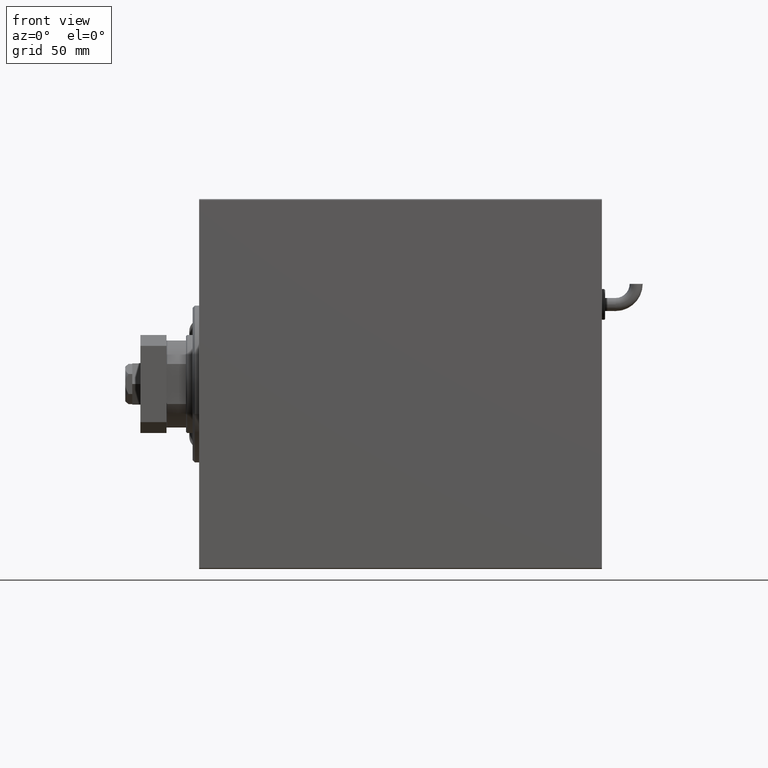
[diagram: clean part render]
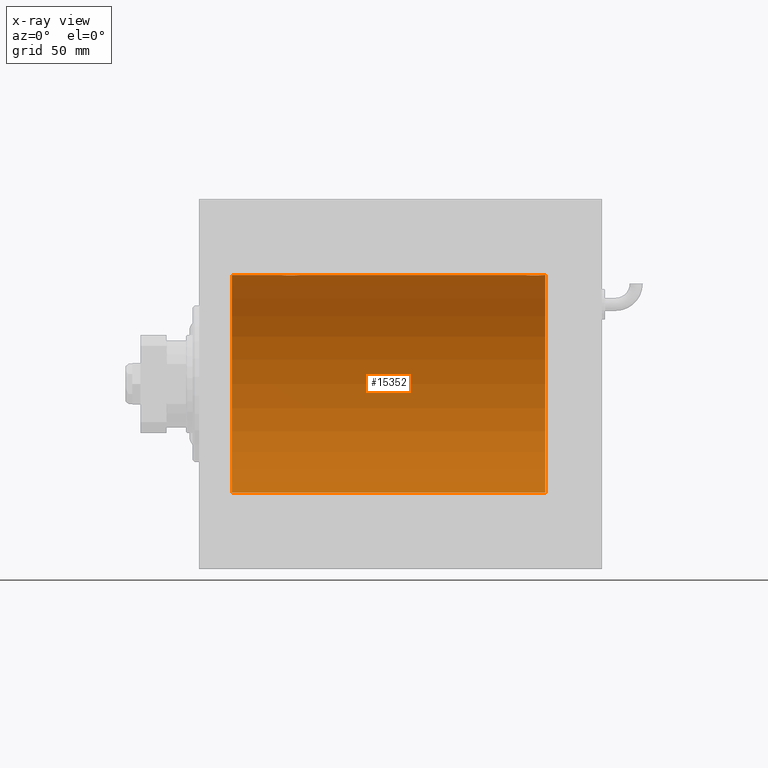
[diagram: x-ray — body ghosted, one internal face saturated and labeled with its STEP entity id]
A machine part, front view, then the same camera in x-ray: the body is ghosted and one INTERNAL B-rep face — a face not visible from any outside direction — is saturated and labeled: STEP entity #15352.
In plain terms, the highlighted cylindrical surface (partial cylindrical patch) has radius 50 mm, axis along (-1, -0, -0).
Its self-contained STEP definition (entity closure, byte-faithful):
#587 = B_SPLINE_CURVE_WITH_KNOTS ( 'NONE', 3,
 ( #42388, #33588, #14222, #28756, #18752, #24234, #23927, #51765, #603, #14817, #15129, #56303, #4831, #9670, #24525, #56012, #6037, #42974, #33276, #19377, #28154, #33892, #52074, #1508, #29059, #19070, #19980, #46326, #38447, #19669, #56916, #10280, #32683, #55707 ),
 .UNSPECIFIED., .F., .F.,
 ( 4, 2, 2, 2, 2, 2, 2, 2, 2, 2, 2, 2, 2, 2, 2, 2, 4 ),
 ( 1.106815784963710050E-18, 0.0008308394705804721505, 0.001661678941160943650, 0.002492518411741415692, 0.003323357882321888602, 0.004154197352902360210, 0.004985036823482833120, 0.005815876294063306029, 0.006646715764643778071, 0.007477555235224250980, 0.008308394705804723890, 0.009139234176385195932, 0.009970073646965667974, 0.01080091311754614175, 0.01163175258812661553, 0.01246259205870708757, 0.01329343152928755961 ),
 .UNSPECIFIED. ) ;
#603 = CARTESIAN_POINT ( 'NONE',  ( 45.20063781226178179, 2.809844036175776605, 49.92137121633497543 ) ) ;
#1508 = CARTESIAN_POINT ( 'NONE',  ( 39.40842139494907315, 3.379775232620393144, 49.88587880363004956 ) ) ;
#3005 = CARTESIAN_POINT ( 'NONE',  ( 150.6210426914385891, 2.592639214541025083, 49.93326838038159821 ) ) ;
#3143 = DIRECTION ( 'NONE',  ( -1.000000000000000000, 0.000000000000000000, 0.000000000000000000 ) ) ;
#3847 = LINE ( 'NONE', #41373, #35327 ) ;
#4831 = CARTESIAN_POINT ( 'NONE',  ( 43.88287007582302124, 3.820198949706816283, 49.85396053238189751 ) ) ;
#5038 = EDGE_CURVE ( 'NONE', #13236, #17952, #3847, .T. ) ;
#5253 = CARTESIAN_POINT ( 'NONE',  ( 37.75000000000000711, -2.480770331693776875E-23, 50.00000000000000000 ) ) ;
#5523 = ORIENTED_EDGE ( 'NONE', *, *, #45937, .T. ) ;
#5817 = VECTOR ( 'NONE', #30733, 1000.000000000000000 ) ;
#6037 = CARTESIAN_POINT ( 'NONE',  ( 42.27887145071498765, 4.249899732140181463, 49.81905611587625060 ) ) ;
#6365 = CARTESIAN_POINT ( 'NONE',  ( 158.0325738856856219, 1.370567417712645897, 49.98187507657574713 ) ) ;
#7550 = CARTESIAN_POINT ( 'NONE',  ( 149.8865276964838813, 1.104090919659205694, 49.98855088738323360 ) ) ;
#7658 = VERTEX_POINT ( 'NONE', #19289 ) ;
#8128 = CARTESIAN_POINT ( 'NONE',  ( 155.3714460322091213, 4.032152715176935409, 49.83726562785247438 ) ) ;
#8312 = ORIENTED_EDGE ( 'NONE', *, *, #50752, .T. ) ;
#8319 = DIRECTION ( 'NONE',  ( -1.000000000000000000, 0.000000000000000000, 0.000000000000000000 ) ) ;
#8437 = CARTESIAN_POINT ( 'NONE',  ( 149.7778058483677910, 0.5592384970569878044, 49.99761483193760370 ) ) ;
#9670 = CARTESIAN_POINT ( 'NONE',  ( 43.37144603220910710, 4.032152715176927416, 49.83726562785246017 ) ) ;
#10280 = CARTESIAN_POINT ( 'NONE',  ( 37.77780584836772704, 0.5592384970569920233, 49.99761483193759659 ) ) ;
#11220 = CARTESIAN_POINT ( 'NONE',  ( 14.99999999999998579, 6.123233995736764507E-15, -50.00000000000000000 ) ) ;
#12083 = CARTESIAN_POINT ( 'NONE',  ( 153.7241931321524930, 4.250099715408719447, 49.81903905555740408 ) ) ;
#12686 = CARTESIAN_POINT ( 'NONE',  ( 46.25000000000000000, -4.016239480171725606E-17, 50.00000000000000000 ) ) ;
#12979 = CARTESIAN_POINT ( 'NONE',  ( 149.7500000000000284, -2.480257572105383217E-23, 50.00000000000000000 ) ) ;
#13236 = VERTEX_POINT ( 'NONE', #34796 ) ;
#13921 = EDGE_CURVE ( 'NONE', #13236, #45869, #40522, .T. ) ;
#13950 = EDGE_CURVE ( 'NONE', #31145, #7658, #22233, .T. ) ;
#14222 = CARTESIAN_POINT ( 'NONE',  ( 46.22241690005311909, 0.5571669497596900555, 49.99763400332482632 ) ) ;
#14817 = CARTESIAN_POINT ( 'NONE',  ( 44.80863005724963699, 3.201703158387178672, 49.89777173894965046 ) ) ;
#15129 = CARTESIAN_POINT ( 'NONE',  ( 44.59471155064525050, 3.377583483857613533, 49.88603192934380104 ) ) ;
#15352 = ADVANCED_FACE ( 'NONE', ( #57012 ), #47019, .F. ) ;
#16222 = CARTESIAN_POINT ( 'NONE',  ( 159.0000000000000000, 0.000000000000000000, 50.00000000000000000 ) ) ;
#17011 = VECTOR ( 'NONE', #55164, 1000.000000000000000 ) ;
#17240 = CARTESIAN_POINT ( 'NONE',  ( 155.1034621127867297, 4.113772393339290012, 49.83051149236716526 ) ) ;
#17819 = CARTESIAN_POINT ( 'NONE',  ( 155.8828700758230354, 3.820198949706825164, 49.85396053238191172 ) ) ;
#17952 = VERTEX_POINT ( 'NONE', #44307 ) ;
#18752 = CARTESIAN_POINT ( 'NONE',  ( 46.03257388568556507, 1.370567417712646341, 49.98187507657574002 ) ) ;
#19070 = CARTESIAN_POINT ( 'NONE',  ( 38.79689007339678852, 2.807369215369738935, 49.92152015083319583 ) ) ;
#19289 = CARTESIAN_POINT ( 'NONE',  ( 14.99999999999998579, 0.000000000000000000, 50.00000000000000000 ) ) ;
#19377 = CARTESIAN_POINT ( 'NONE',  ( 40.89727867996201383, 4.113850194901004897, 49.83050476025722020 ) ) ;
#19669 = CARTESIAN_POINT ( 'NONE',  ( 37.96690704685525475, 1.369053668635231480, 49.98191709664470750 ) ) ;
#19980 = CARTESIAN_POINT ( 'NONE',  ( 38.62104269143860336, 2.592639214541035741, 49.93326838038160531 ) ) ;
#21199 = CARTESIAN_POINT ( 'NONE',  ( 151.8688318623414091, 3.687449343139598490, 49.86408027804463927 ) ) ;
#22233 = LINE ( 'NONE', #35239, #47315 ) ;
#23200 = AXIS2_PLACEMENT_3D ( 'NONE', #30743, #8319, #49228 ) ;
#23927 = CARTESIAN_POINT ( 'NONE',  ( 45.68858383995014094, 2.129315083715793033, 49.95517470752237443 ) ) ;
#24019 = DIRECTION ( 'NONE',  ( 0.000000000000000000, 0.000000000000000000, 1.000000000000000000 ) ) ;
#24234 = CARTESIAN_POINT ( 'NONE',  ( 45.81916120116851232, 1.885236035486731687, 49.96510958966688776 ) ) ;
#24525 = CARTESIAN_POINT ( 'NONE',  ( 43.10346211278671547, 4.113772393339280242, 49.83051149236716526 ) ) ;
#24558 = CARTESIAN_POINT ( 'NONE',  ( 158.2500000000000568, 0.2809437491437558609, 50.00000000000002842 ) ) ;
#26037 = CARTESIAN_POINT ( 'NONE',  ( 157.2006378122617889, 2.809844036175798365, 49.92137121633495411 ) ) ;
#26322 = CARTESIAN_POINT ( 'NONE',  ( 153.4424768969730906, 4.222431257622158540, 49.82142152089561904 ) ) ;
#26461 = DIRECTION ( 'NONE',  ( -1.000000000000000000, -0.000000000000000000, -0.000000000000000000 ) ) ;
#26618 = CARTESIAN_POINT ( 'NONE',  ( 151.1937868506140035, 3.204122793140516734, 49.89762612798256924 ) ) ;
#26717 = CARTESIAN_POINT ( 'NONE',  ( 159.0000000000000000, 6.123233995736764507E-15, -50.00000000000000000 ) ) ;
#26767 = CARTESIAN_POINT ( 'NONE',  ( 159.0000000000000000, 0.000000000000000000, 0.000000000000000000 ) ) ;
#28154 = CARTESIAN_POINT ( 'NONE',  ( 40.63227890959592514, 4.033536463572223951, 49.83715477915254155 ) ) ;
#28756 = CARTESIAN_POINT ( 'NONE',  ( 46.11436432943420982, 1.100566060006321623, 49.98862465889502715 ) ) ;
#29059 = CARTESIAN_POINT ( 'NONE',  ( 39.19378685061396084, 3.204122793140522951, 49.89762612798256924 ) ) ;
#30401 = DIRECTION ( 'NONE',  ( 0.000000000000000000, 0.000000000000000000, 1.000000000000000000 ) ) ;
#30555 = CARTESIAN_POINT ( 'NONE',  ( 152.8972786799620565, 4.113850194901012891, 49.83050476025721309 ) ) ;
#30671 = ORIENTED_EDGE ( 'NONE', *, *, #13921, .F. ) ;
#30733 = DIRECTION ( 'NONE',  ( -1.000000000000000000, -0.000000000000000000, -0.000000000000000000 ) ) ;
#30743 = CARTESIAN_POINT ( 'NONE',  ( 14.99999999999998579, 0.000000000000000000, 0.000000000000000000 ) ) ;
#30863 = CARTESIAN_POINT ( 'NONE',  ( 156.5947115506452576, 3.377583483857621971, 49.88603192934379393 ) ) ;
#31145 = VERTEX_POINT ( 'NONE', #5253 ) ;
#31154 = CARTESIAN_POINT ( 'NONE',  ( 157.6885838399501836, 2.129315083715787704, 49.95517470752238864 ) ) ;
#31286 = EDGE_CURVE ( 'NONE', #45869, #40464, #53968, .T. ) ;
#31450 = CARTESIAN_POINT ( 'NONE',  ( 157.8191612011685550, 1.885236035486734796, 49.96510958966688776 ) ) ;
#31761 = CARTESIAN_POINT ( 'NONE',  ( 154.2788714507150019, 4.249899732140190345, 49.81905611587625060 ) ) ;
#32683 = CARTESIAN_POINT ( 'NONE',  ( 37.75000000000001421, 0.2774387832574390367, 50.00000000000000000 ) ) ;
#33276 = CARTESIAN_POINT ( 'NONE',  ( 41.44247689697309056, 4.222431257622151435, 49.82142152089561904 ) ) ;
#33369 = DIRECTION ( 'NONE',  ( -1.000000000000000000, -0.000000000000000000, -0.000000000000000000 ) ) ;
#33588 = CARTESIAN_POINT ( 'NONE',  ( 46.24999999999999289, 0.2809437491437558609, 50.00000000000002132 ) ) ;
#33865 = CIRCLE ( 'NONE', #23200, 50.00000000000000000 ) ;
#33892 = CARTESIAN_POINT ( 'NONE',  ( 40.11755606404298646, 3.820534283589331004, 49.85393595968218960 ) ) ;
#33924 = CARTESIAN_POINT ( 'NONE',  ( 158.2500000000000284, 3.264240518254796977E-15, 50.00000000000000000 ) ) ;
#34398 = VERTEX_POINT ( 'NONE', #12686 ) ;
#34576 = CARTESIAN_POINT ( 'NONE',  ( 159.0000000000000000, 0.000000000000000000, 0.000000000000000000 ) ) ;
#34796 = CARTESIAN_POINT ( 'NONE',  ( 159.0000000000000000, 0.000000000000000000, 50.00000000000000000 ) ) ;
#35239 = CARTESIAN_POINT ( 'NONE',  ( 159.0000000000000000, 0.000000000000000000, 50.00000000000000000 ) ) ;
#35327 = VECTOR ( 'NONE', #40496, 1000.000000000000000 ) ;
#35547 = ORIENTED_EDGE ( 'NONE', *, *, #31286, .F. ) ;
#35597 = CARTESIAN_POINT ( 'NONE',  ( 159.0000000000000000, 6.123233995736764507E-15, -50.00000000000000000 ) ) ;
#35715 = CARTESIAN_POINT ( 'NONE',  ( 150.7968900733968383, 2.807369215369729165, 49.92152015083319583 ) ) ;
#36185 = VERTEX_POINT ( 'NONE', #59770 ) ;
#36301 = CARTESIAN_POINT ( 'NONE',  ( 152.1175560640429865, 3.820534283589338109, 49.85393595968218250 ) ) ;
#37649 = ORIENTED_EDGE ( 'NONE', *, *, #58534, .T. ) ;
#38447 = CARTESIAN_POINT ( 'NONE',  ( 38.18018918912861892, 1.883929957684043366, 49.96515938649660882 ) ) ;
#39660 = CARTESIAN_POINT ( 'NONE',  ( 157.3801048630077162, 2.591239970584164887, 49.93334495304387843 ) ) ;
#40464 = VERTEX_POINT ( 'NONE', #11220 ) ;
#40496 = DIRECTION ( 'NONE',  ( -1.000000000000000000, -0.000000000000000000, -0.000000000000000000 ) ) ;
#40522 = CIRCLE ( 'NONE', #51148, 50.00000000000000000 ) ;
#40846 = CARTESIAN_POINT ( 'NONE',  ( 156.1300936179967209, 3.688265093516111648, 49.86402463145034858 ) ) ;
#41276 = ORIENTED_EDGE ( 'NONE', *, *, #45085, .T. ) ;
#41373 = CARTESIAN_POINT ( 'NONE',  ( 159.0000000000000000, 0.000000000000000000, 50.00000000000000000 ) ) ;
#41894 = B_SPLINE_CURVE_WITH_KNOTS ( 'NONE', 3,
 ( #33924, #24558, #43007, #52397, #6365, #31450, #31154, #39660, #26037, #59299, #30863, #40846, #17819, #8128, #17240, #44498, #31761, #12083, #26322, #30555, #49937, #36301, #21199, #54769, #26618, #35715, #3005, #50238, #49041, #44784, #7550, #8437, #54177, #12979 ),
 .UNSPECIFIED., .F., .F.,
 ( 4, 2, 2, 2, 2, 2, 2, 2, 2, 2, 2, 2, 2, 2, 2, 2, 4 ),
 ( 3.172014289387592084E-18, 0.0008308394705804767041, 0.001661678941160950372, 0.002492518411741423932, 0.003323357882321897275, 0.004154197352902371486, 0.004985036823482845263, 0.005815876294063319039, 0.006646715764643793684, 0.007477555235224268328, 0.008308394705804742972, 0.009139234176385218483, 0.009970073646965693995, 0.01080091311754616777, 0.01163175258812664328, 0.01246259205870711879, 0.01329343152928759257 ),
 .UNSPECIFIED. ) ;
#42388 = CARTESIAN_POINT ( 'NONE',  ( 46.25000000000000000, -4.016239480171725606E-17, 50.00000000000000000 ) ) ;
#42974 = CARTESIAN_POINT ( 'NONE',  ( 41.72419313215250014, 4.250099715408711454, 49.81903905555740408 ) ) ;
#43007 = CARTESIAN_POINT ( 'NONE',  ( 158.2224169000531049, 0.5571669497596910547, 49.99763400332482632 ) ) ;
#43773 = LINE ( 'NONE', #16222, #5817 ) ;
#44307 = CARTESIAN_POINT ( 'NONE',  ( 158.2500000000000284, 3.264240518254796977E-15, 50.00000000000000000 ) ) ;
#44498 = CARTESIAN_POINT ( 'NONE',  ( 154.5547403769280947, 4.222915468341965628, 49.82138079020267440 ) ) ;
#44784 = CARTESIAN_POINT ( 'NONE',  ( 149.9669070468553116, 1.369053668635234811, 49.98191709664471460 ) ) ;
#45085 = EDGE_CURVE ( 'NONE', #36185, #34398, #43773, .T. ) ;
#45869 = VERTEX_POINT ( 'NONE', #35597 ) ;
#45937 = EDGE_CURVE ( 'NONE', #7658, #40464, #33865, .T. ) ;
#46326 = CARTESIAN_POINT ( 'NONE',  ( 38.31327765660728346, 2.132418568805247272, 49.95503838744802749 ) ) ;
#47019 = CYLINDRICAL_SURFACE ( 'NONE', #50241, 50.00000000000000000 ) ;
#47315 = VECTOR ( 'NONE', #26461, 1000.000000000000000 ) ;
#48518 = ORIENTED_EDGE ( 'NONE', *, *, #5038, .T. ) ;
#48567 = ORIENTED_EDGE ( 'NONE', *, *, #13950, .T. ) ;
#49041 = CARTESIAN_POINT ( 'NONE',  ( 150.1801891891286118, 1.883929957684048695, 49.96515938649660882 ) ) ;
#49228 = DIRECTION ( 'NONE',  ( 0.000000000000000000, 0.000000000000000000, 1.000000000000000000 ) ) ;
#49937 = CARTESIAN_POINT ( 'NONE',  ( 152.6322789095959820, 4.033536463572232833, 49.83715477915254866 ) ) ;
#50238 = CARTESIAN_POINT ( 'NONE',  ( 150.3132776566072550, 2.132418568805235726, 49.95503838744805591 ) ) ;
#50241 = AXIS2_PLACEMENT_3D ( 'NONE', #34576, #33369, #24019 ) ;
#50752 = EDGE_CURVE ( 'NONE', #17952, #36185, #41894, .T. ) ;
#51148 = AXIS2_PLACEMENT_3D ( 'NONE', #26767, #3143, #30401 ) ;
#51765 = CARTESIAN_POINT ( 'NONE',  ( 45.38010486300765223, 2.591239970584167995, 49.93334495304387133 ) ) ;
#52074 = CARTESIAN_POINT ( 'NONE',  ( 39.86883186234137355, 3.687449343139592273, 49.86408027804464638 ) ) ;
#52397 = CARTESIAN_POINT ( 'NONE',  ( 158.1143643294343235, 1.100566060006324509, 49.98862465889504136 ) ) ;
#52426 = EDGE_LOOP ( 'NONE', ( #35547, #30671, #48518, #8312, #41276, #37649, #48567, #5523 ) ) ;
#53968 = LINE ( 'NONE', #26717, #17011 ) ;
#54177 = CARTESIAN_POINT ( 'NONE',  ( 149.7500000000000568, 0.2774387832574382595, 50.00000000000000000 ) ) ;
#54769 = CARTESIAN_POINT ( 'NONE',  ( 151.4084213949491300, 3.379775232620398917, 49.88587880363006377 ) ) ;
#55164 = DIRECTION ( 'NONE',  ( -1.000000000000000000, -0.000000000000000000, -0.000000000000000000 ) ) ;
#55707 = CARTESIAN_POINT ( 'NONE',  ( 37.75000000000000711, -2.480770331693776875E-23, 50.00000000000000000 ) ) ;
#56012 = CARTESIAN_POINT ( 'NONE',  ( 42.55474037692811606, 4.222915468341956746, 49.82138079020267440 ) ) ;
#56303 = CARTESIAN_POINT ( 'NONE',  ( 44.13009361799669250, 3.688265093516102322, 49.86402463145034147 ) ) ;
#56916 = CARTESIAN_POINT ( 'NONE',  ( 37.88652769648385998, 1.104090919659207692, 49.98855088738324071 ) ) ;
#57012 = FACE_OUTER_BOUND ( 'NONE', #52426, .T. ) ;
#58534 = EDGE_CURVE ( 'NONE', #34398, #31145, #587, .T. ) ;
#59299 = CARTESIAN_POINT ( 'NONE',  ( 156.8086300572496441, 3.201703158387199988, 49.89777173894965756 ) ) ;
#59770 = CARTESIAN_POINT ( 'NONE',  ( 149.7500000000000284, -2.480257572105383217E-23, 50.00000000000000000 ) ) ;